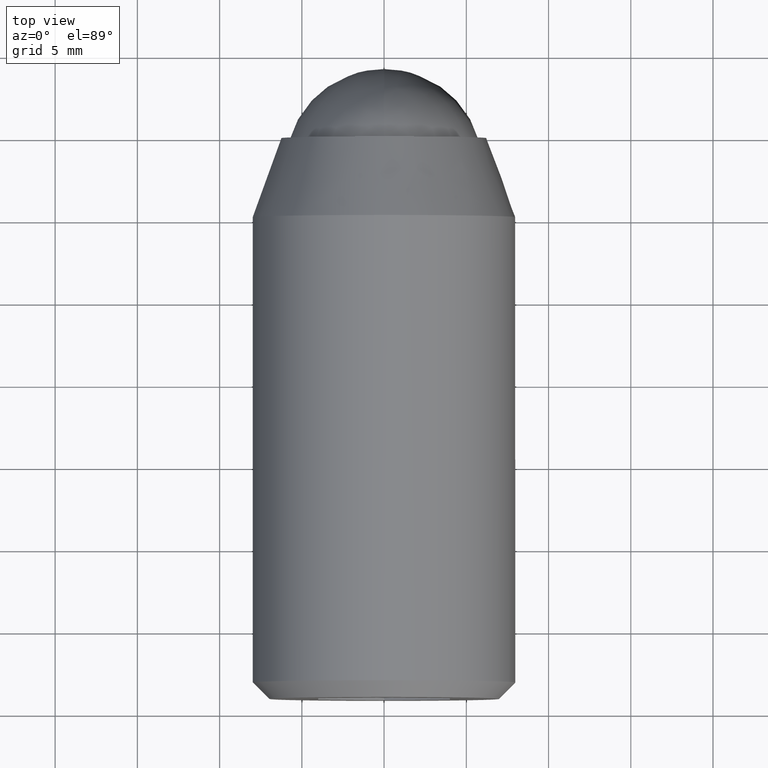
[diagram: clean part render]
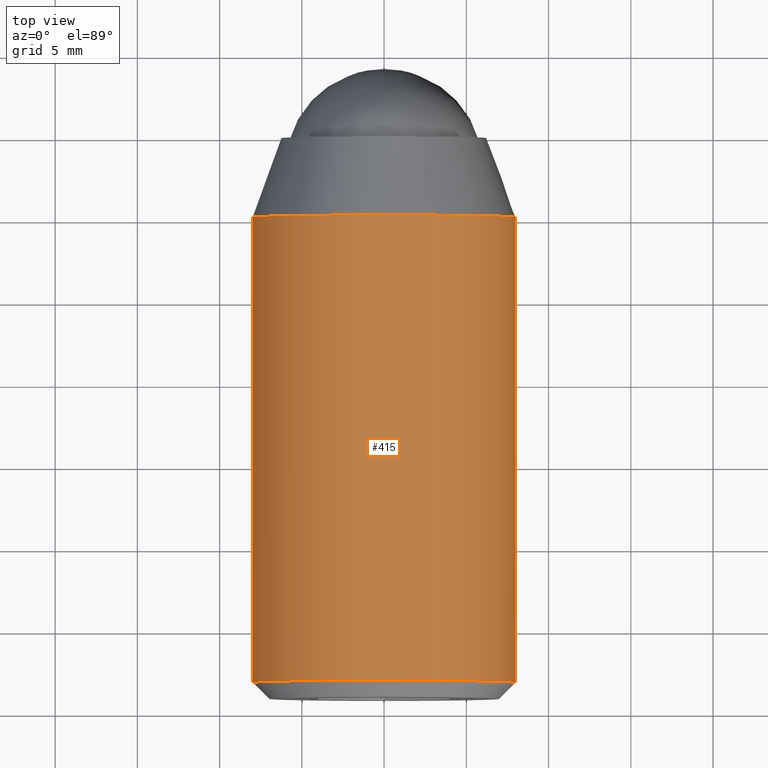
[diagram: same view with one face highlighted and labeled with its STEP entity id]
A machine part, top view. The second image highlights one B-rep face of the part: STEP entity #415.
In plain terms, the highlighted face is a freeform B-spline surface patch.
Its self-contained STEP definition (entity closure, byte-faithful):
#234=CARTESIAN_POINT('',(-1.874588911880106,-4.100788149999998,-7.777269212998617));
#235=CARTESIAN_POINT('',(-1.190626377330084,-4.100788149999999,-7.942127667591645));
#236=CARTESIAN_POINT('',(-0.488388316278856,-4.100788149999998,-7.985078387374935));
#237=CARTESIAN_POINT('',(7.496690071096078,-4.100788149999999,-8.473466703653791));
#238=CARTESIAN_POINT('',(7.985078387374934,-4.100788149999998,-0.488388316278857));
#239=CARTESIAN_POINT('',(8.473466703653790,-4.100788149999999,7.496690071096077));
#240=CARTESIAN_POINT('',(0.488388316278856,-4.100788149999998,7.985078387374933));
#241=CARTESIAN_POINT('',(-7.496690071096078,-4.100788149999999,8.473466703653788));
#242=CARTESIAN_POINT('',(-7.985078387374934,-4.100788149999998,0.488388316278855));
#243=CARTESIAN_POINT('',(-1.874588911880106,-33.824980296249990,-7.777269212998617));
#244=CARTESIAN_POINT('',(-1.190626377330084,-33.824980296249990,-7.942127667591645));
#245=CARTESIAN_POINT('',(-0.488388316278856,-33.824980296249990,-7.985078387374935));
#246=CARTESIAN_POINT('',(7.496690071096078,-33.824980296249983,-8.473466703653791));
#247=CARTESIAN_POINT('',(7.985078387374934,-33.824980296249990,-0.488388316278857));
#248=CARTESIAN_POINT('',(8.473466703653790,-33.824980296249983,7.496690071096077));
#249=CARTESIAN_POINT('',(0.488388316278856,-33.824980296249990,7.985078387374933));
#250=CARTESIAN_POINT('',(-7.496690071096078,-33.824980296249983,8.473466703653788));
#251=CARTESIAN_POINT('',(-7.985078387374934,-33.824980296249990,0.488388316278855));
#259=(BOUNDED_SURFACE()B_SPLINE_SURFACE(2,1,((#234,#243),(#235,#244),(#236,#245),(#237,#246),(#238,#247),(#239,#248),(#240,#249),(#241,#250),(#242,#251)),.UNSPECIFIED.,.F.,.F.,.U.)B_SPLINE_SURFACE_WITH_KNOTS((3,2,2,2,3),(2,2),(0.0,1.590580079512685,14.845414075451730,28.100248071390769,41.355082067329803),(0.0,29.724192146249990),.UNSPECIFIED.)GEOMETRIC_REPRESENTATION_ITEM()RATIONAL_B_SPLINE_SURFACE(((0.938140952186599,0.938140952186599),(0.964852813742386,0.964852813742386),(1.0,1.0),(0.707106781186548,0.707106781186548),(1.0,1.0),(0.707106781186548,0.707106781186548),(1.0,1.0),(0.707106781186548,0.707106781186548),(1.0,1.0)))REPRESENTATION_ITEM('')SURFACE());
#260=CARTESIAN_POINT('',(-1.874588911887099,-33.099999999999987,-7.777269212996934));
#261=VERTEX_POINT('',#260);
#262=CARTESIAN_POINT('',(0.0,-33.099999999999987,-8.000000000000002));
#263=VERTEX_POINT('',#262);
#264=CARTESIAN_POINT('',(-1.874588911887098,-33.099999999999994,-7.777269212996934));
#265=CARTESIAN_POINT('',(-0.950526424610946,-33.099999999999994,-8.000000000000002));
#266=CARTESIAN_POINT('',(0.0,-33.099999999999987,-8.000000000000002));
#274=(BOUNDED_CURVE()B_SPLINE_CURVE(2,(#264,#265,#266),.UNSPECIFIED.,.F.,.U.)B_SPLINE_CURVE_WITH_KNOTS((3,3),(0.959962709885954,1.0),.UNSPECIFIED.)CURVE()GEOMETRIC_REPRESENTATION_ITEM()RATIONAL_B_SPLINE_CURVE((0.921210900018876,0.953093396903717,1.0))REPRESENTATION_ITEM(''));
#275=EDGE_CURVE('',#261,#263,#274,.T.);
#276=ORIENTED_EDGE('',*,*,#275,.F.);
#277=CARTESIAN_POINT('',(-1.874588911887099,-4.808085999999999,-7.777269212996934));
#278=VERTEX_POINT('',#277);
#279=CARTESIAN_POINT('',(-1.874588911887099,-4.808085999999999,-7.777269212996934));
#280=CARTESIAN_POINT('',(-1.874588911887099,-33.099999999999987,-7.777269212996934));
#281=QUASI_UNIFORM_CURVE('',1,(#279,#280),.UNSPECIFIED.,.F.,.U.);
#282=EDGE_CURVE('',#278,#261,#281,.T.);
#283=ORIENTED_EDGE('',*,*,#282,.F.);
#284=CARTESIAN_POINT('',(0.0,-4.808085999999999,-8.000000000000002));
#285=VERTEX_POINT('',#284);
#286=CARTESIAN_POINT('',(-1.874588911887098,-4.808085999999999,-7.777269212996934));
#287=CARTESIAN_POINT('',(-0.950526424610946,-4.808086000000000,-8.000000000000002));
#288=CARTESIAN_POINT('',(0.0,-4.808085999999999,-8.000000000000002));
#296=(BOUNDED_CURVE()B_SPLINE_CURVE(2,(#286,#287,#288),.UNSPECIFIED.,.F.,.U.)B_SPLINE_CURVE_WITH_KNOTS((3,3),(0.959962709885954,1.0),.UNSPECIFIED.)CURVE()GEOMETRIC_REPRESENTATION_ITEM()RATIONAL_B_SPLINE_CURVE((0.921210900018876,0.953093396903717,1.0))REPRESENTATION_ITEM(''));
#297=EDGE_CURVE('',#278,#285,#296,.T.);
#298=ORIENTED_EDGE('',*,*,#297,.T.);
#299=CARTESIAN_POINT('',(7.944075781646310,-4.808084164397428,-0.944271828332837));
#300=VERTEX_POINT('',#299);
#301=CARTESIAN_POINT('',(0.0,-4.808085999999999,-8.000000000000002));
#302=CARTESIAN_POINT('',(7.105397650375080,-4.808085082198716,-7.999999960570460));
#303=CARTESIAN_POINT('',(7.944075781646310,-4.808084164397428,-0.944271828332837));
#311=(BOUNDED_CURVE()B_SPLINE_CURVE(2,(#301,#302,#303),.UNSPECIFIED.,.F.,.U.)B_SPLINE_CURVE_WITH_KNOTS((3,3),(0.0,0.229562515426989),.UNSPECIFIED.)CURVE()GEOMETRIC_REPRESENTATION_ITEM()RATIONAL_B_SPLINE_CURVE((1.0,0.731050783750706,0.956026836335853))REPRESENTATION_ITEM(''));
#312=EDGE_CURVE('',#285,#300,#311,.T.);
#313=ORIENTED_EDGE('',*,*,#312,.T.);
#314=CARTESIAN_POINT('',(0.0,-4.808085999999999,7.999999999999998));
#315=VERTEX_POINT('',#314);
#316=CARTESIAN_POINT('',(7.944075781646310,-4.808084164397428,-0.944271828332837));
#317=CARTESIAN_POINT('',(7.999999354014221,-4.808084212674930,-0.473791884985567));
#318=CARTESIAN_POINT('',(7.999999373659843,-4.808084267030790,0.000000074449863));
#319=CARTESIAN_POINT('',(7.999999705377104,-4.808085184832076,8.000000035020323));
#320=CARTESIAN_POINT('',(0.0,-4.808085999999999,7.999999999999998));
#328=(BOUNDED_CURVE()B_SPLINE_CURVE(2,(#316,#317,#318,#319,#320),.UNSPECIFIED.,.F.,.U.)B_SPLINE_CURVE_WITH_KNOTS((3,2,3),(0.229562515426989,0.250000000000000,0.500000000000000),.UNSPECIFIED.)CURVE()GEOMETRIC_REPRESENTATION_ITEM()RATIONAL_B_SPLINE_CURVE((0.956026836335853,0.976055997435842,1.0,0.707106781186548,1.0))REPRESENTATION_ITEM(''));
#329=EDGE_CURVE('',#300,#315,#328,.T.);
#330=ORIENTED_EDGE('',*,*,#329,.T.);
#331=CARTESIAN_POINT('',(-7.985078387374985,-4.808086000002238,0.488388316288034));
#332=VERTEX_POINT('',#331);
#333=CARTESIAN_POINT('',(0.0,-4.808085999999999,7.999999999999998));
#334=CARTESIAN_POINT('',(-7.525648535222513,-4.808085999999999,7.999999999999999));
#335=CARTESIAN_POINT('',(-7.985078387374985,-4.808086000002238,0.488388316288034));
#343=(BOUNDED_CURVE()B_SPLINE_CURVE(2,(#333,#334,#335),.UNSPECIFIED.,.F.,.U.)B_SPLINE_CURVE_WITH_KNOTS((3,3),(0.500000000000000,0.739332962241441),.UNSPECIFIED.)CURVE()GEOMETRIC_REPRESENTATION_ITEM()RATIONAL_B_SPLINE_CURVE((1.0,0.719603993283784,0.976072041672071))REPRESENTATION_ITEM(''));
#344=EDGE_CURVE('',#315,#332,#343,.T.);
#345=ORIENTED_EDGE('',*,*,#344,.T.);
#346=CARTESIAN_POINT('',(-7.985078427888723,-33.099999999999987,0.488387653883368));
#347=VERTEX_POINT('',#346);
#348=CARTESIAN_POINT('',(-7.985078387374985,-4.808086000002238,0.488388316288034));
#349=CARTESIAN_POINT('',(-7.985078427888723,-33.099999999999987,0.488387653883368));
#350=QUASI_UNIFORM_CURVE('',1,(#348,#349),.UNSPECIFIED.,.F.,.U.);
#351=EDGE_CURVE('',#332,#347,#350,.T.);
#352=ORIENTED_EDGE('',*,*,#351,.T.);
#353=CARTESIAN_POINT('',(-7.975338585537228,-33.100000089765423,0.627672693204310));
#354=VERTEX_POINT('',#353);
#355=CARTESIAN_POINT('',(-7.975338585537228,-33.100000089765409,0.627672693204309));
#356=CARTESIAN_POINT('',(-7.980816343196216,-33.099999999999987,0.558072312365772));
#357=CARTESIAN_POINT('',(-7.985078427888723,-33.099999999999994,0.488387653883367));
#365=(BOUNDED_CURVE()B_SPLINE_CURVE(2,(#355,#356,#357),.UNSPECIFIED.,.F.,.U.)B_SPLINE_CURVE_WITH_KNOTS((3,3),(0.736331303451770,0.739332990868918),.UNSPECIFIED.)CURVE()GEOMETRIC_REPRESENTATION_ITEM()RATIONAL_B_SPLINE_CURVE((0.969723362054861,0.972855508457312,0.976072103026212))REPRESENTATION_ITEM(''));
#366=EDGE_CURVE('',#354,#347,#365,.T.);
#367=ORIENTED_EDGE('',*,*,#366,.F.);
#368=CARTESIAN_POINT('',(0.0,-33.099999999999987,7.999999999999998));
#369=VERTEX_POINT('',#368);
#370=CARTESIAN_POINT('',(0.0,-33.099999999999987,7.999999999999998));
#371=CARTESIAN_POINT('',(-7.395124055251427,-33.099999999999994,7.999999999999999));
#372=CARTESIAN_POINT('',(-7.975338585537228,-33.100000089765416,0.627672693204310));
#380=(BOUNDED_CURVE()B_SPLINE_CURVE(2,(#370,#371,#372),.UNSPECIFIED.,.F.,.U.)B_SPLINE_CURVE_WITH_KNOTS((3,3),(0.500000000000000,0.736331303451771),.UNSPECIFIED.)CURVE()GEOMETRIC_REPRESENTATION_ITEM()RATIONAL_B_SPLINE_CURVE((1.0,0.723120655302528,0.969723362054862))REPRESENTATION_ITEM(''));
#381=EDGE_CURVE('',#369,#354,#380,.T.);
#382=ORIENTED_EDGE('',*,*,#381,.F.);
#383=CARTESIAN_POINT('',(7.975338585537230,-33.100000089765409,-0.627672693204314));
#384=VERTEX_POINT('',#383);
#385=CARTESIAN_POINT('',(7.975338585537230,-33.100000089765409,-0.627672693204314));
#386=CARTESIAN_POINT('',(8.0,-33.099999999999994,-0.314320790181507));
#387=CARTESIAN_POINT('',(8.0,-33.099999999999987,-1.291960E-015));
#388=CARTESIAN_POINT('',(8.0,-33.099999999999994,7.999999999999999));
#389=CARTESIAN_POINT('',(0.0,-33.099999999999987,7.999999999999998));
#397=(BOUNDED_CURVE()B_SPLINE_CURVE(2,(#385,#386,#387,#388,#389),.UNSPECIFIED.,.F.,.U.)B_SPLINE_CURVE_WITH_KNOTS((3,2,3),(0.236331303451770,0.250000000000000,0.500000000000000),.UNSPECIFIED.)CURVE()GEOMETRIC_REPRESENTATION_ITEM()RATIONAL_B_SPLINE_CURVE((0.969723362054860,0.983986125884019,1.0,0.707106781186548,1.0))REPRESENTATION_ITEM(''));
#398=EDGE_CURVE('',#384,#369,#397,.T.);
#399=ORIENTED_EDGE('',*,*,#398,.F.);
#400=CARTESIAN_POINT('',(0.0,-33.099999999999987,-8.000000000000002));
#401=CARTESIAN_POINT('',(7.395124055251383,-33.099999999999980,-8.000000000000002));
#402=CARTESIAN_POINT('',(7.975338585537230,-33.100000089765409,-0.627672693204314));
#410=(BOUNDED_CURVE()B_SPLINE_CURVE(2,(#400,#401,#402),.UNSPECIFIED.,.F.,.U.)B_SPLINE_CURVE_WITH_KNOTS((3,3),(0.0,0.236331303451770),.UNSPECIFIED.)CURVE()GEOMETRIC_REPRESENTATION_ITEM()RATIONAL_B_SPLINE_CURVE((1.0,0.723120655302529,0.969723362054860))REPRESENTATION_ITEM(''));
#411=EDGE_CURVE('',#263,#384,#410,.T.);
#412=ORIENTED_EDGE('',*,*,#411,.F.);
#413=EDGE_LOOP('',(#276,#283,#298,#313,#330,#345,#352,#367,#382,#399,#412));
#414=FACE_OUTER_BOUND('',#413,.T.);
#415=ADVANCED_FACE('',(#414),#259,.T.);